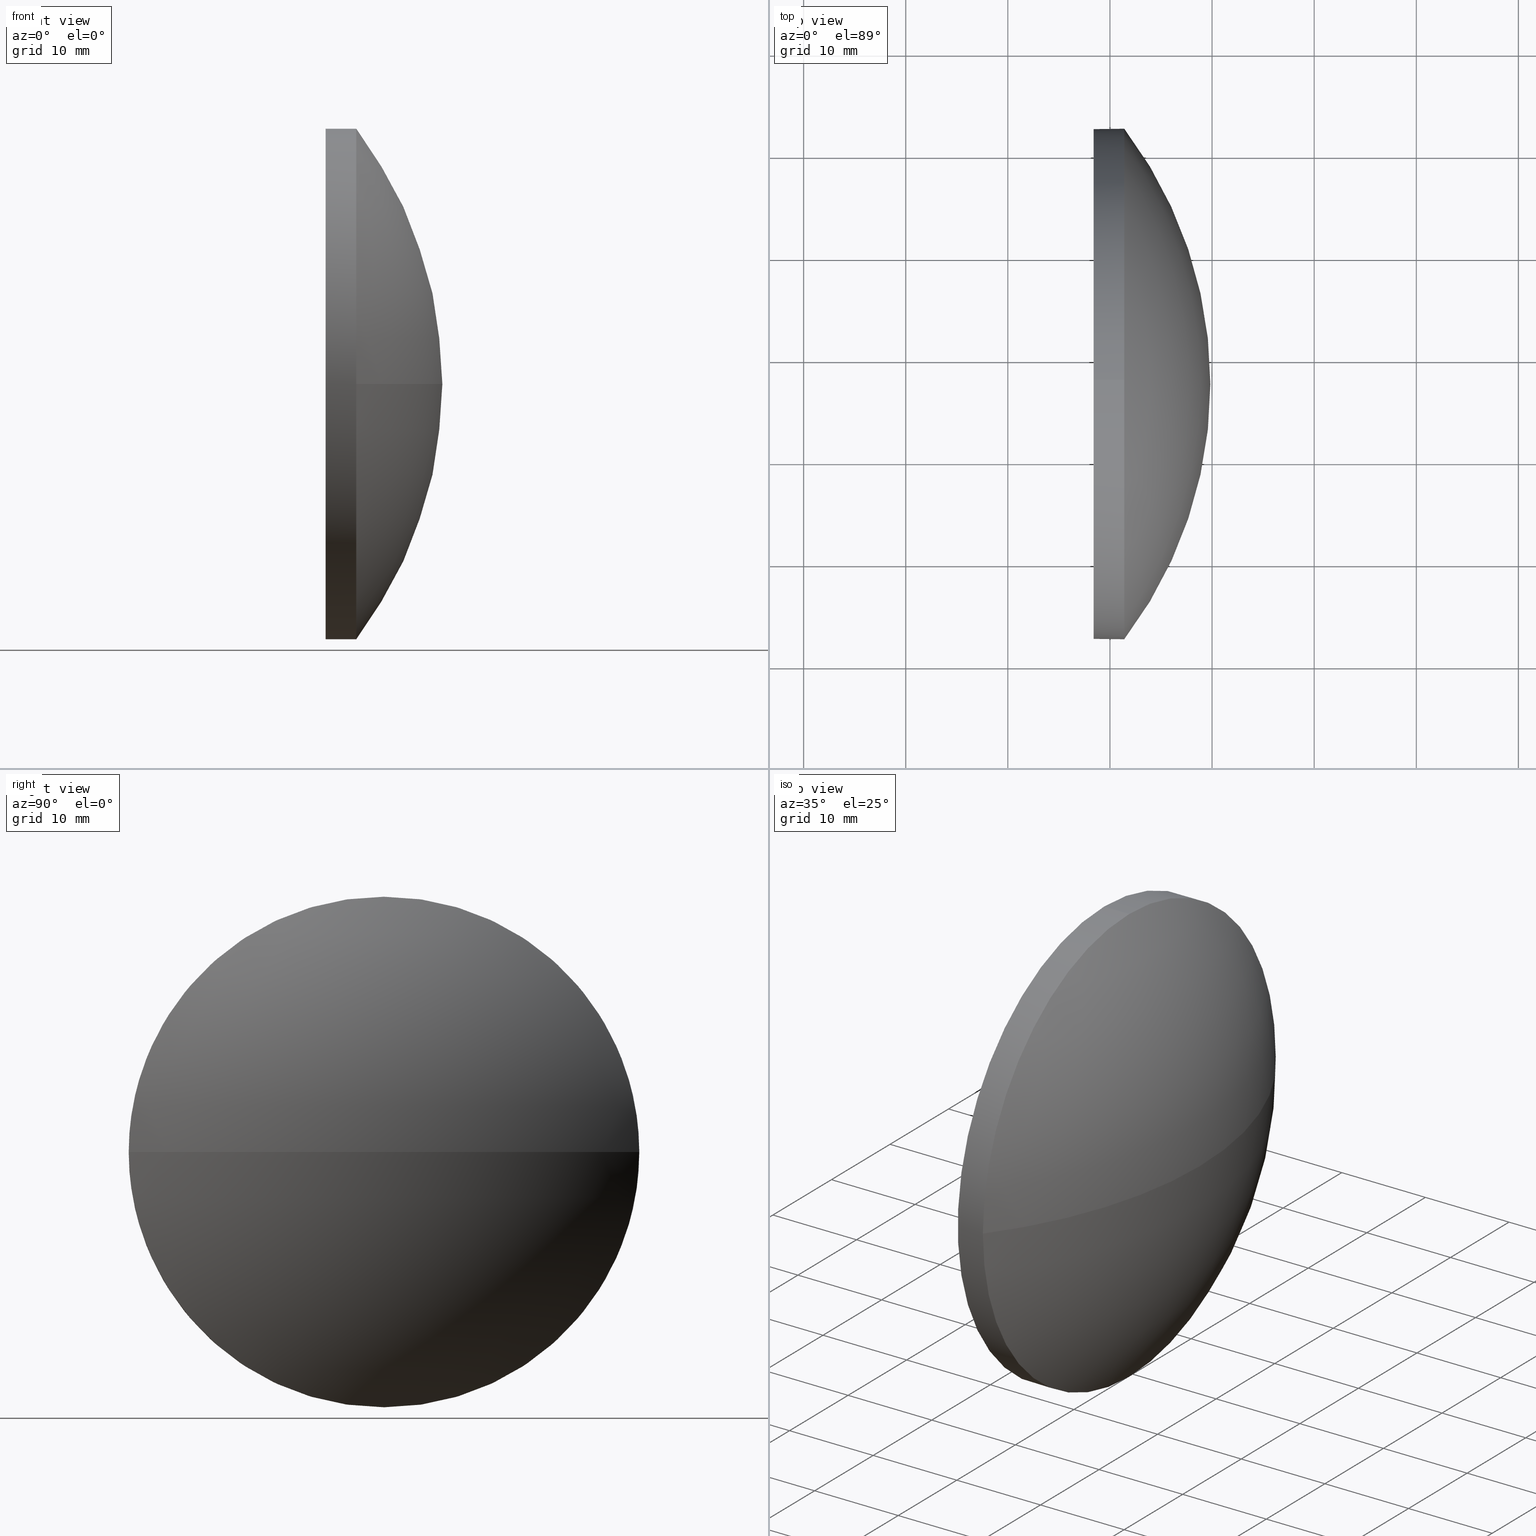
[diagram: canonical four-view strip — front | top / right | iso, engineering-drawing reading convention]
A machine part, canonical four-view strip (front | top / right | iso — engineering-drawing reading convention). The complete STEP part file that produces these views, byte-faithful:
ISO-10303-21;
HEADER;
FILE_DESCRIPTION (( 'STEP AP214' ),
    '1' );
FILE_NAME ('100239.STEP',
    '2019-05-28T07:56:22',
    ( '' ),
    ( '' ),
    'SwSTEP 2.0',
    'SolidWorks 2016',
    '' );
FILE_SCHEMA (( 'AUTOMOTIVE_DESIGN' ));
ENDSEC;

DATA;
#1 = ORIENTED_EDGE ( 'NONE', *, *, #148, .T. ) ;
#2 = APPLICATION_PROTOCOL_DEFINITION ( 'draft international standard', 'automotive_design', 1998, #92 ) ;
#3 = AXIS2_PLACEMENT_3D ( 'NONE', #71, #167, #131 ) ;
#4 = MANIFOLD_SOLID_BREP ( '��ת1', #28 ) ;
#5 = COLOUR_RGB ( '',1.000000000000000000, 1.000000000000000000, 1.000000000000000000 ) ;
#6 = EDGE_CURVE ( 'NONE', #173, #75, #135, .T. ) ;
#7 = VERTEX_POINT ( 'NONE', #118 ) ;
#8 = VERTEX_POINT ( 'NONE', #104 ) ;
#9 = DIRECTION ( 'NONE',  ( 0.0000000000000000000, 0.0000000000000000000, 1.000000000000000000 ) ) ;
#10 = AXIS2_PLACEMENT_3D ( 'NONE', #37, #139, #162 ) ;
#11 = PRESENTATION_STYLE_ASSIGNMENT (( #126 ) ) ;
#12 = CARTESIAN_POINT ( 'NONE',  ( 444.4311937674011100, 47.44710200765325700, 24.99999999999999300 ) ) ;
#13 = PRODUCT_DEFINITION_CONTEXT ( 'detailed design', #92, 'design' ) ;
#14 = CARTESIAN_POINT ( 'NONE',  ( 451.4029690565171200, 72.44710200765327100, 3.061616997868382600E-015 ) ) ;
#15 = VECTOR ( 'NONE', #55, 1000.000000000000000 ) ;
#16 = PRESENTATION_LAYER_ASSIGNMENT (  '', '', ( #185 ) ) ;
#17 = CARTESIAN_POINT ( 'NONE',  ( 0.0000000000000000000, 0.0000000000000000000, 0.0000000000000000000 ) ) ;
#18 = PRODUCT_DEFINITION_SHAPE ( 'NONE', 'NONE',  #114 ) ;
#19 = ORIENTED_EDGE ( 'NONE', *, *, #85, .F. ) ;
#20 = PRODUCT_CONTEXT ( 'NONE', #170, 'mechanical' ) ;
#21 = ORIENTED_EDGE ( 'NONE', *, *, #56, .T. ) ;
#22 = CYLINDRICAL_SURFACE ( 'NONE', #137, 24.99999999999999300 ) ;
#23 = DIRECTION ( 'NONE',  ( 0.0000000000000000000, -1.000000000000000000, 0.0000000000000000000 ) ) ;
#24 = DIRECTION ( 'NONE',  ( 0.0000000000000000000, 0.0000000000000000000, 1.000000000000000000 ) ) ;
#25 = ORIENTED_EDGE ( 'NONE', *, *, #186, .T. ) ;
#26 = DIRECTION ( 'NONE',  ( -1.000000000000000000, -0.0000000000000000000, -0.0000000000000000000 ) ) ;
#27 = DIRECTION ( 'NONE',  ( -1.000000000000000000, -0.0000000000000000000, -0.0000000000000000000 ) ) ;
#28 = CLOSED_SHELL ( 'NONE', ( #153, #156, #49, #74, #157 ) ) ;
#29 = FACE_OUTER_BOUND ( 'NONE', #77, .T. ) ;
#30 = CARTESIAN_POINT ( 'NONE',  ( 448.4029690565171200, 47.44710200765325700, 24.99999999999999300 ) ) ;
#31 = CARTESIAN_POINT ( 'NONE',  ( 451.4029690565171200, 47.44710200765325700, -24.99999999999999300 ) ) ;
#32 = DIRECTION ( 'NONE',  ( 0.0000000000000000000, 0.0000000000000000000, 1.000000000000000000 ) ) ;
#33 = AXIS2_PLACEMENT_3D ( 'NONE', #100, #67, #9 ) ;
#34 = ORIENTED_EDGE ( 'NONE', *, *, #46, .F. ) ;
#35 = FACE_OUTER_BOUND ( 'NONE', #138, .T. ) ;
#36 = EDGE_LOOP ( 'NONE', ( #53, #1, #136, #61, #123 ) ) ;
#37 = CARTESIAN_POINT ( 'NONE',  ( 418.5479809189132500, 47.44710200765326400, 0.0000000000000000000 ) ) ;
#38 = CARTESIAN_POINT ( 'NONE',  ( 418.5479809189132500, 47.44710200765326400, 0.0000000000000000000 ) ) ;
#39 = SHAPE_DEFINITION_REPRESENTATION ( #18, #113 ) ;
#40 = AXIS2_PLACEMENT_3D ( 'NONE', #120, #144, #180 ) ;
#41 =( NAMED_UNIT ( * ) PLANE_ANGLE_UNIT ( ) SI_UNIT ( $, .RADIAN. ) );
#42 = AXIS2_PLACEMENT_3D ( 'NONE', #161, #78, #24 ) ;
#43 = CARTESIAN_POINT ( 'NONE',  ( 448.4029690565171200, 47.44710200765325700, 0.0000000000000000000 ) ) ;
#44 = DIRECTION ( 'NONE',  ( 0.0000000000000000000, 0.0000000000000000000, 1.000000000000000000 ) ) ;
#45 = CIRCLE ( 'NONE', #51, 24.99999999999999300 ) ;
#46 = EDGE_CURVE ( 'NONE', #8, #173, #50, .T. ) ;
#47 = VERTEX_POINT ( 'NONE', #79 ) ;
#48 = EDGE_CURVE ( 'NONE', #7, #173, #149, .T. ) ;
#49 = ADVANCED_FACE ( 'NONE', ( #155 ), #107, .T. ) ;
#50 = CIRCLE ( 'NONE', #10, 41.28498813760384000 ) ;
#51 = AXIS2_PLACEMENT_3D ( 'NONE', #43, #145, #44 ) ;
#52 = PRODUCT_RELATED_PRODUCT_CATEGORY ( 'part', '', ( #81 ) ) ;
#53 = ORIENTED_EDGE ( 'NONE', *, *, #186, .F. ) ;
#54 = AXIS2_PLACEMENT_3D ( 'NONE', #17, #174, #89 ) ;
#55 = DIRECTION ( 'NONE',  ( -1.000000000000000000, -0.0000000000000000000, -0.0000000000000000000 ) ) ;
#56 = EDGE_CURVE ( 'NONE', #178, #65, #45, .T. ) ;
#57 = DIRECTION ( 'NONE',  ( 0.0000000000000000000, 0.0000000000000000000, -1.000000000000000000 ) ) ;
#58 = DIRECTION ( 'NONE',  ( 0.0000000000000000000, 0.0000000000000000000, 1.000000000000000000 ) ) ;
#59 = EDGE_CURVE ( 'NONE', #65, #178, #93, .T. ) ;
#60 = UNCERTAINTY_MEASURE_WITH_UNIT (LENGTH_MEASURE( 1.000000000000000100E-005 ), #119, 'distance_accuracy_value', 'NONE');
#61 = ORIENTED_EDGE ( 'NONE', *, *, #80, .T. ) ;
#62 = AXIS2_PLACEMENT_3D ( 'NONE', #38, #68, #23 ) ;
#63 = ORIENTED_EDGE ( 'NONE', *, *, #59, .T. ) ;
#64 = CIRCLE ( 'NONE', #3, 41.28498813760384000 ) ;
#65 = VERTEX_POINT ( 'NONE', #109 ) ;
#66 = FILL_AREA_STYLE ('',( #164 ) ) ;
#67 = DIRECTION ( 'NONE',  ( -1.000000000000000000, -0.0000000000000000000, -0.0000000000000000000 ) ) ;
#68 = DIRECTION ( 'NONE',  ( 0.0000000000000000000, 0.0000000000000000000, 1.000000000000000000 ) ) ;
#69 = DIRECTION ( 'NONE',  ( 0.0000000000000000000, -1.000000000000000000, 0.0000000000000000000 ) ) ;
#70 = SURFACE_SIDE_STYLE ('',( #125 ) ) ;
#71 = CARTESIAN_POINT ( 'NONE',  ( 418.5479809189132500, 47.44710200765326400, 0.0000000000000000000 ) ) ;
#72 = UNCERTAINTY_MEASURE_WITH_UNIT (LENGTH_MEASURE( 1.000000000000000100E-005 ), #124, 'distance_accuracy_value', 'NONE');
#73 =( NAMED_UNIT ( * ) PLANE_ANGLE_UNIT ( ) SI_UNIT ( $, .RADIAN. ) );
#74 = ADVANCED_FACE ( 'NONE', ( #179 ), #22, .T. ) ;
#75 = VERTEX_POINT ( 'NONE', #31 ) ;
#76 = SURFACE_STYLE_USAGE ( .BOTH. , #70 ) ;
#77 = EDGE_LOOP ( 'NONE', ( #97, #25, #102, #115, #91 ) ) ;
#78 = DIRECTION ( 'NONE',  ( -1.000000000000000000, -0.0000000000000000000, -0.0000000000000000000 ) ) ;
#79 = CARTESIAN_POINT ( 'NONE',  ( 451.4029690565171200, 22.44710200765326000, 0.0000000000000000000 ) ) ;
#80 = EDGE_CURVE ( 'NONE', #7, #178, #117, .T. ) ;
#81 = PRODUCT ( '100239', '100239', '', ( #20 ) ) ;
#82 = ORIENTED_EDGE ( 'NONE', *, *, #6, .F. ) ;
#83 = DIRECTION ( 'NONE',  ( 1.000000000000000000, 0.0000000000000000000, 0.0000000000000000000 ) ) ;
#84 = DIRECTION ( 'NONE',  ( 0.0000000000000000000, 0.0000000000000000000, 1.000000000000000000 ) ) ;
#85 = EDGE_CURVE ( 'NONE', #47, #7, #111, .T. ) ;
#86 = CARTESIAN_POINT ( 'NONE',  ( 444.4311937674011100, 47.44710200765325700, 0.0000000000000000000 ) ) ;
#87 = CARTESIAN_POINT ( 'NONE',  ( 451.4029690565171200, 47.44710200765325700, 0.0000000000000000000 ) ) ;
#88 = APPLICATION_PROTOCOL_DEFINITION ( 'draft international standard', 'automotive_design', 1998, #170 ) ;
#89 = DIRECTION ( 'NONE',  ( 1.000000000000000000, 0.0000000000000000000, 0.0000000000000000000 ) ) ;
#90 =( NAMED_UNIT ( * ) PLANE_ANGLE_UNIT ( ) SI_UNIT ( $, .RADIAN. ) );
#91 = ORIENTED_EDGE ( 'NONE', *, *, #48, .T. ) ;
#92 = APPLICATION_CONTEXT ( 'automotive_design' ) ;
#93 = CIRCLE ( 'NONE', #40, 24.99999999999999300 ) ;
#94 = UNCERTAINTY_MEASURE_WITH_UNIT (LENGTH_MEASURE( 1.000000000000000100E-005 ), #141, 'distance_accuracy_value', 'NONE');
#95 = PRODUCT_DEFINITION_FORMATION_WITH_SPECIFIED_SOURCE ( '�κ�', '', #81, .NOT_KNOWN. ) ;
#96 = COLOUR_RGB ( '',1.000000000000000000, 1.000000000000000000, 1.000000000000000000 ) ;
#97 = ORIENTED_EDGE ( 'NONE', *, *, #6, .T. ) ;
#98 = CIRCLE ( 'NONE', #110, 24.99999999999999300 ) ;
#99 = SURFACE_SIDE_STYLE ('',( #160 ) ) ;
#100 = CARTESIAN_POINT ( 'NONE',  ( 451.4029690565171200, 47.44710200765325700, 0.0000000000000000000 ) ) ;
#101 = ORIENTED_EDGE ( 'NONE', *, *, #159, .T. ) ;
#102 = ORIENTED_EDGE ( 'NONE', *, *, #56, .F. ) ;
#103 = AXIS2_PLACEMENT_3D ( 'NONE', #87, #182, #132 ) ;
#104 = CARTESIAN_POINT ( 'NONE',  ( 459.8329690565171300, 47.44710200765326400, 0.0000000000000000000 ) ) ;
#105 = PLANE ( 'NONE',  #146 ) ;
#106 = ORIENTED_EDGE ( 'NONE', *, *, #159, .F. ) ;
#107 = SPHERICAL_SURFACE ( 'NONE', #62, 41.28498813760384000 ) ;
#108 = CARTESIAN_POINT ( 'NONE',  ( 444.4311937674011100, 47.44710200765325700, -24.99999999999999300 ) ) ;
#109 = CARTESIAN_POINT ( 'NONE',  ( 448.4029690565171200, 47.44710200765325700, -24.99999999999999300 ) ) ;
#110 = AXIS2_PLACEMENT_3D ( 'NONE', #142, #26, #84 ) ;
#111 = CIRCLE ( 'NONE', #103, 24.99999999999999300 ) ;
#112 = ORIENTED_EDGE ( 'NONE', *, *, #48, .F. ) ;
#113 = ADVANCED_BREP_SHAPE_REPRESENTATION ( '100239', ( #4, #54 ), #163 ) ;
#114 = PRODUCT_DEFINITION ( 'δ֪', '', #95, #13 ) ;
#115 = ORIENTED_EDGE ( 'NONE', *, *, #80, .F. ) ;
#116 = AXIS2_PLACEMENT_3D ( 'NONE', #129, #151, #69 ) ;
#117 = LINE ( 'NONE', #12, #181 ) ;
#118 = CARTESIAN_POINT ( 'NONE',  ( 451.4029690565171200, 47.44710200765325700, 24.99999999999999300 ) ) ;
#119 =( LENGTH_UNIT ( ) NAMED_UNIT ( * ) SI_UNIT ( .MILLI., .METRE. ) );
#120 = CARTESIAN_POINT ( 'NONE',  ( 448.4029690565171200, 47.44710200765325700, 0.0000000000000000000 ) ) ;
#121 = DIRECTION ( 'NONE',  ( -1.000000000000000000, -0.0000000000000000000, -0.0000000000000000000 ) ) ;
#122 = AXIS2_PLACEMENT_3D ( 'NONE', #86, #183, #58 ) ;
#123 = ORIENTED_EDGE ( 'NONE', *, *, #59, .F. ) ;
#124 =( LENGTH_UNIT ( ) NAMED_UNIT ( * ) SI_UNIT ( .MILLI., .METRE. ) );
#125 = SURFACE_STYLE_FILL_AREA ( #150 ) ;
#126 = SURFACE_STYLE_USAGE ( .BOTH. , #99 ) ;
#127 =( GEOMETRIC_REPRESENTATION_CONTEXT ( 3 ) GLOBAL_UNCERTAINTY_ASSIGNED_CONTEXT ( ( #72 ) ) GLOBAL_UNIT_ASSIGNED_CONTEXT ( ( #124, #90, #172 ) ) REPRESENTATION_CONTEXT ( 'NONE', 'WORKASPACE' ) );
#128 = ORIENTED_EDGE ( 'NONE', *, *, #148, .F. ) ;
#129 = CARTESIAN_POINT ( 'NONE',  ( 418.5479809189132500, 47.44710200765326400, 0.0000000000000000000 ) ) ;
#130 =( NAMED_UNIT ( * ) SI_UNIT ( $, .STERADIAN. ) SOLID_ANGLE_UNIT ( ) );
#131 = DIRECTION ( 'NONE',  ( -1.000000000000000000, 0.0000000000000000000, 0.0000000000000000000 ) ) ;
#132 = DIRECTION ( 'NONE',  ( 0.0000000000000000000, 0.0000000000000000000, 1.000000000000000000 ) ) ;
#133 = ORIENTED_EDGE ( 'NONE', *, *, #46, .T. ) ;
#134 = FACE_OUTER_BOUND ( 'NONE', #165, .T. ) ;
#135 = CIRCLE ( 'NONE', #33, 24.99999999999999300 ) ;
#136 = ORIENTED_EDGE ( 'NONE', *, *, #85, .T. ) ;
#137 = AXIS2_PLACEMENT_3D ( 'NONE', #152, #121, #32 ) ;
#138 = EDGE_LOOP ( 'NONE', ( #21, #63 ) ) ;
#139 = DIRECTION ( 'NONE',  ( 0.0000000000000000000, -1.224646799147353200E-016, 1.000000000000000000 ) ) ;
#140 =( NAMED_UNIT ( * ) SI_UNIT ( $, .STERADIAN. ) SOLID_ANGLE_UNIT ( ) );
#141 =( LENGTH_UNIT ( ) NAMED_UNIT ( * ) SI_UNIT ( .MILLI., .METRE. ) );
#142 = CARTESIAN_POINT ( 'NONE',  ( 451.4029690565171200, 47.44710200765325700, 0.0000000000000000000 ) ) ;
#143 = EDGE_LOOP ( 'NONE', ( #34, #101, #128, #82 ) ) ;
#144 = DIRECTION ( 'NONE',  ( -1.000000000000000000, -0.0000000000000000000, -0.0000000000000000000 ) ) ;
#145 = DIRECTION ( 'NONE',  ( -1.000000000000000000, -0.0000000000000000000, -0.0000000000000000000 ) ) ;
#146 = AXIS2_PLACEMENT_3D ( 'NONE', #169, #83, #57 ) ;
#147 = MECHANICAL_DESIGN_GEOMETRIC_PRESENTATION_REPRESENTATION (  '', ( #185 ), #127 ) ;
#148 = EDGE_CURVE ( 'NONE', #75, #47, #98, .T. ) ;
#149 = CIRCLE ( 'NONE', #42, 24.99999999999999300 ) ;
#150 = FILL_AREA_STYLE ('',( #184 ) ) ;
#151 = DIRECTION ( 'NONE',  ( 0.0000000000000000000, 0.0000000000000000000, 1.000000000000000000 ) ) ;
#152 = CARTESIAN_POINT ( 'NONE',  ( 444.4311937674011100, 47.44710200765325700, 0.0000000000000000000 ) ) ;
#153 = ADVANCED_FACE ( 'NONE', ( #29 ), #175, .T. ) ;
#154 = STYLED_ITEM ( 'NONE', ( #11 ), #4 ) ;
#155 = FACE_OUTER_BOUND ( 'NONE', #143, .T. ) ;
#156 = ADVANCED_FACE ( 'NONE', ( #134 ), #176, .T. ) ;
#157 = ADVANCED_FACE ( 'NONE', ( #35 ), #105, .F. ) ;
#158 = PRESENTATION_STYLE_ASSIGNMENT (( #76 ) ) ;
#159 = EDGE_CURVE ( 'NONE', #8, #47, #64, .T. ) ;
#160 = SURFACE_STYLE_FILL_AREA ( #66 ) ;
#161 = CARTESIAN_POINT ( 'NONE',  ( 451.4029690565171200, 47.44710200765325700, 0.0000000000000000000 ) ) ;
#162 = DIRECTION ( 'NONE',  ( 0.0000000000000000000, -1.000000000000000000, -1.224646799147353200E-016 ) ) ;
#163 =( GEOMETRIC_REPRESENTATION_CONTEXT ( 3 ) GLOBAL_UNCERTAINTY_ASSIGNED_CONTEXT ( ( #60 ) ) GLOBAL_UNIT_ASSIGNED_CONTEXT ( ( #119, #73, #130 ) ) REPRESENTATION_CONTEXT ( 'NONE', 'WORKASPACE' ) );
#164 = FILL_AREA_STYLE_COLOUR ( '', #96 ) ;
#165 = EDGE_LOOP ( 'NONE', ( #106, #133, #112, #19 ) ) ;
#166 = MECHANICAL_DESIGN_GEOMETRIC_PRESENTATION_REPRESENTATION (  '', ( #154 ), #177 ) ;
#167 = DIRECTION ( 'NONE',  ( 0.0000000000000000000, 0.0000000000000000000, -1.000000000000000000 ) ) ;
#168 = LINE ( 'NONE', #108, #15 ) ;
#169 = CARTESIAN_POINT ( 'NONE',  ( 448.4029690565171200, 47.44710200765325700, 0.0000000000000000000 ) ) ;
#170 = APPLICATION_CONTEXT ( 'automotive_design' ) ;
#171 = PRESENTATION_LAYER_ASSIGNMENT (  '', '', ( #154 ) ) ;
#172 =( NAMED_UNIT ( * ) SI_UNIT ( $, .STERADIAN. ) SOLID_ANGLE_UNIT ( ) );
#173 = VERTEX_POINT ( 'NONE', #14 ) ;
#174 = DIRECTION ( 'NONE',  ( 0.0000000000000000000, 0.0000000000000000000, 1.000000000000000000 ) ) ;
#175 = CYLINDRICAL_SURFACE ( 'NONE', #122, 24.99999999999999300 ) ;
#176 = SPHERICAL_SURFACE ( 'NONE', #116, 41.28498813760384000 ) ;
#177 =( GEOMETRIC_REPRESENTATION_CONTEXT ( 3 ) GLOBAL_UNCERTAINTY_ASSIGNED_CONTEXT ( ( #94 ) ) GLOBAL_UNIT_ASSIGNED_CONTEXT ( ( #141, #41, #140 ) ) REPRESENTATION_CONTEXT ( 'NONE', 'WORKASPACE' ) );
#178 = VERTEX_POINT ( 'NONE', #30 ) ;
#179 = FACE_OUTER_BOUND ( 'NONE', #36, .T. ) ;
#180 = DIRECTION ( 'NONE',  ( 0.0000000000000000000, 0.0000000000000000000, 1.000000000000000000 ) ) ;
#181 = VECTOR ( 'NONE', #27, 1000.000000000000000 ) ;
#182 = DIRECTION ( 'NONE',  ( -1.000000000000000000, -0.0000000000000000000, -0.0000000000000000000 ) ) ;
#183 = DIRECTION ( 'NONE',  ( -1.000000000000000000, -0.0000000000000000000, -0.0000000000000000000 ) ) ;
#184 = FILL_AREA_STYLE_COLOUR ( '', #5 ) ;
#185 = STYLED_ITEM ( 'NONE', ( #158 ), #113 ) ;
#186 = EDGE_CURVE ( 'NONE', #75, #65, #168, .T. ) ;
ENDSEC;
END-ISO-10303-21;
